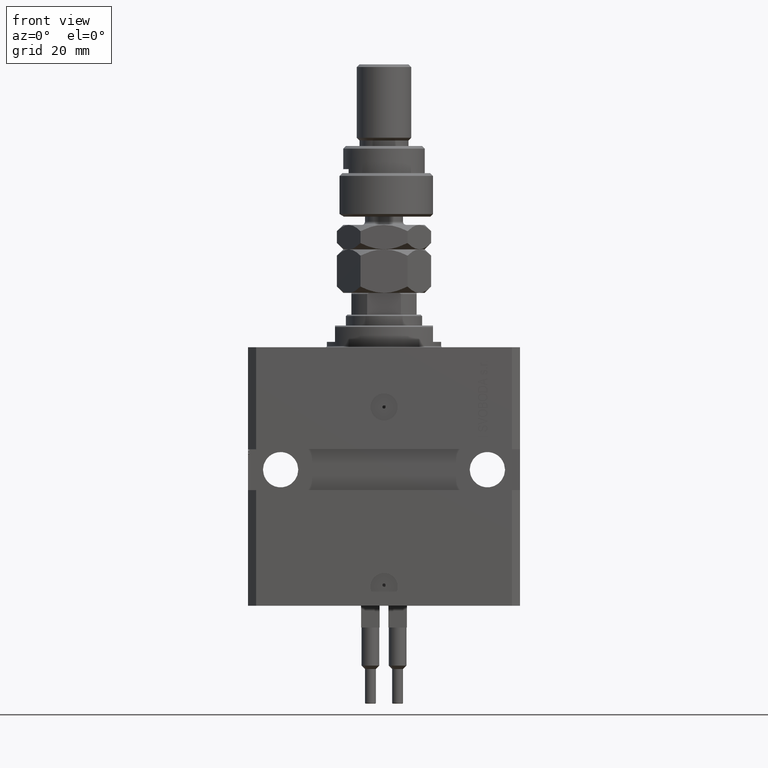
[diagram: clean part render]
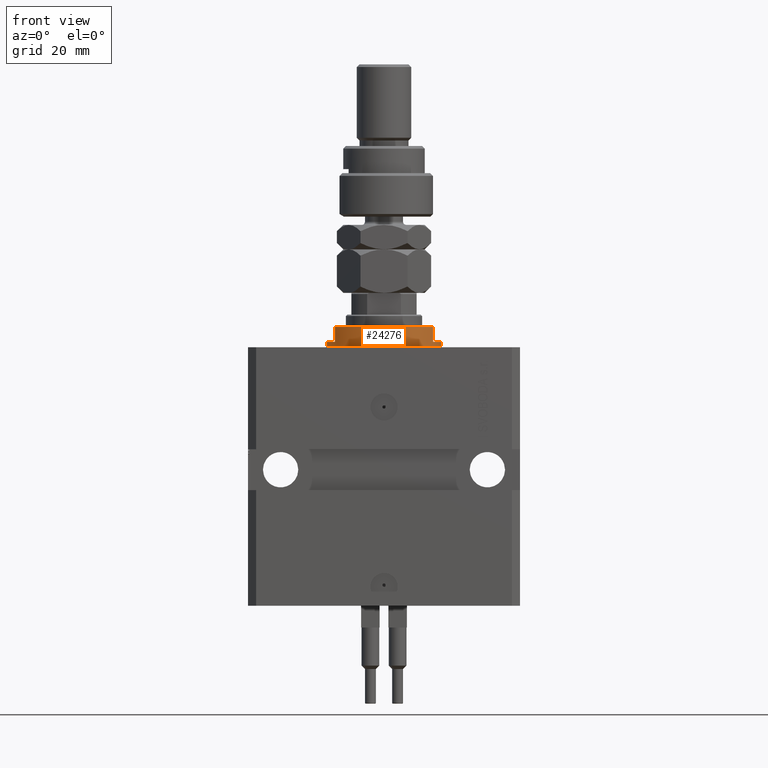
[diagram: same view with one face highlighted and labeled with its STEP entity id]
A machine part, front view. The second image highlights one B-rep face of the part: STEP entity #24276.
In plain terms, the highlighted cylindrical surface (partial cylindrical patch) has radius 21 mm, axis along (0, 0, -1).
Its self-contained STEP definition (entity closure, byte-faithful):
#359 = VERTEX_POINT ( 'NONE', #3332 ) ;
#1786 = VERTEX_POINT ( 'NONE', #24195 ) ;
#1796 = CARTESIAN_POINT ( 'NONE',  ( -18.00000000000000000, -10.81665382639197048, -8.000000000000000000 ) ) ;
#1979 = CARTESIAN_POINT ( 'NONE',  ( 18.00000000000000000, -10.81665382639197048, -7.500000000000016875 ) ) ;
#2524 = ORIENTED_EDGE ( 'NONE', *, *, #31877, .F. ) ;
#2593 = CIRCLE ( 'NONE', #36544, 21.00000000000000000 ) ;
#3332 = CARTESIAN_POINT ( 'NONE',  ( -21.00000000000000000, 2.571758278209441661E-15, -0.5000000000000004441 ) ) ;
#4902 = CYLINDRICAL_SURFACE ( 'NONE', #47258, 21.00000000000000000 ) ;
#5371 = CIRCLE ( 'NONE', #38448, 21.00000000000000000 ) ;
#5528 = VERTEX_POINT ( 'NONE', #49860 ) ;
#7348 = ORIENTED_EDGE ( 'NONE', *, *, #28617, .T. ) ;
#9098 = DIRECTION ( 'NONE',  ( -0.000000000000000000, -0.000000000000000000, 1.000000000000000000 ) ) ;
#9364 = CIRCLE ( 'NONE', #11041, 21.00000000000000000 ) ;
#10077 = EDGE_CURVE ( 'NONE', #48825, #38222, #26940, .T. ) ;
#10701 = ORIENTED_EDGE ( 'NONE', *, *, #30349, .F. ) ;
#11041 = AXIS2_PLACEMENT_3D ( 'NONE', #41863, #23188, #38726 ) ;
#15553 = EDGE_CURVE ( 'NONE', #43414, #16613, #48528, .T. ) ;
#15918 = CIRCLE ( 'NONE', #29977, 21.00000000000000000 ) ;
#16613 = VERTEX_POINT ( 'NONE', #42082 ) ;
#17221 = CARTESIAN_POINT ( 'NONE',  ( 0.000000000000000000, 0.000000000000000000, -7.500000000000016875 ) ) ;
#17340 = VECTOR ( 'NONE', #42764, 1000.000000000000000 ) ;
#18109 = LINE ( 'NONE', #1796, #40679 ) ;
#19463 = CARTESIAN_POINT ( 'NONE',  ( 0.000000000000000000, 0.000000000000000000, -2.000000000000000000 ) ) ;
#20812 = DIRECTION ( 'NONE',  ( 0.000000000000000000, 0.000000000000000000, -1.000000000000000000 ) ) ;
#22142 = VECTOR ( 'NONE', #9098, 1000.000000000000000 ) ;
#23188 = DIRECTION ( 'NONE',  ( -0.000000000000000000, -0.000000000000000000, -1.000000000000000000 ) ) ;
#24011 = ORIENTED_EDGE ( 'NONE', *, *, #10077, .F. ) ;
#24195 = CARTESIAN_POINT ( 'NONE',  ( -18.00000000000000000, -10.81665382639197048, -7.500000000000017764 ) ) ;
#24276 = ADVANCED_FACE ( 'NONE', ( #24595 ), #4902, .T. ) ;
#24505 = LINE ( 'NONE', #40320, #25873 ) ;
#24595 = FACE_OUTER_BOUND ( 'NONE', #35975, .T. ) ;
#25873 = VECTOR ( 'NONE', #35917, 1000.000000000000000 ) ;
#26195 = EDGE_CURVE ( 'NONE', #5528, #1786, #18109, .T. ) ;
#26940 = LINE ( 'NONE', #31083, #17340 ) ;
#28617 = EDGE_CURVE ( 'NONE', #1786, #38222, #15918, .T. ) ;
#28891 = DIRECTION ( 'NONE',  ( 0.000000000000000000, 0.000000000000000000, 1.000000000000000000 ) ) ;
#29977 = AXIS2_PLACEMENT_3D ( 'NONE', #17221, #28891, #40828 ) ;
#30349 = EDGE_CURVE ( 'NONE', #5528, #41589, #2593, .T. ) ;
#31083 = CARTESIAN_POINT ( 'NONE',  ( 18.00000000000000000, -10.81665382639197048, -8.000000000000000000 ) ) ;
#31877 = EDGE_CURVE ( 'NONE', #41589, #359, #24505, .T. ) ;
#32395 = CARTESIAN_POINT ( 'NONE',  ( -21.00000000000000000, 2.571758278209441661E-15, -2.000000000000000000 ) ) ;
#35807 = CARTESIAN_POINT ( 'NONE',  ( 21.00000000000000000, 0.000000000000000000, -8.000000000000000000 ) ) ;
#35917 = DIRECTION ( 'NONE',  ( -0.000000000000000000, -0.000000000000000000, 1.000000000000000000 ) ) ;
#35975 = EDGE_LOOP ( 'NONE', ( #2524, #10701, #45255, #7348, #24011, #43501, #45939, #36148 ) ) ;
#36148 = ORIENTED_EDGE ( 'NONE', *, *, #42316, .T. ) ;
#36518 = CARTESIAN_POINT ( 'NONE',  ( 0.000000000000000000, 0.000000000000000000, -8.000000000000000000 ) ) ;
#36544 = AXIS2_PLACEMENT_3D ( 'NONE', #19463, #47983, #48762 ) ;
#36578 = CARTESIAN_POINT ( 'NONE',  ( 18.00000000000000000, -10.81665382639197048, -2.000000000000000000 ) ) ;
#37716 = CARTESIAN_POINT ( 'NONE',  ( 21.00000000000000000, 0.000000000000000000, -2.000000000000000000 ) ) ;
#38222 = VERTEX_POINT ( 'NONE', #1979 ) ;
#38448 = AXIS2_PLACEMENT_3D ( 'NONE', #48844, #20812, #41300 ) ;
#38726 = DIRECTION ( 'NONE',  ( 1.000000000000000000, 0.000000000000000000, 0.000000000000000000 ) ) ;
#40320 = CARTESIAN_POINT ( 'NONE',  ( -21.00000000000000000, 2.571758278209441661E-15, -8.000000000000000000 ) ) ;
#40679 = VECTOR ( 'NONE', #42227, 1000.000000000000000 ) ;
#40828 = DIRECTION ( 'NONE',  ( -1.000000000000000000, 0.000000000000000000, 0.000000000000000000 ) ) ;
#41300 = DIRECTION ( 'NONE',  ( -1.000000000000000000, 0.000000000000000000, 0.000000000000000000 ) ) ;
#41462 = DIRECTION ( 'NONE',  ( 1.000000000000000000, 0.000000000000000000, 0.000000000000000000 ) ) ;
#41589 = VERTEX_POINT ( 'NONE', #32395 ) ;
#41863 = CARTESIAN_POINT ( 'NONE',  ( 0.000000000000000000, 0.000000000000000000, -0.5000000000000004441 ) ) ;
#41953 = DIRECTION ( 'NONE',  ( -0.000000000000000000, -0.000000000000000000, 1.000000000000000000 ) ) ;
#42082 = CARTESIAN_POINT ( 'NONE',  ( 21.00000000000000000, 0.000000000000000000, -0.5000000000000004441 ) ) ;
#42227 = DIRECTION ( 'NONE',  ( 0.000000000000000000, 0.000000000000000000, -1.000000000000000000 ) ) ;
#42316 = EDGE_CURVE ( 'NONE', #16613, #359, #9364, .T. ) ;
#42764 = DIRECTION ( 'NONE',  ( 0.000000000000000000, 0.000000000000000000, -1.000000000000000000 ) ) ;
#43414 = VERTEX_POINT ( 'NONE', #37716 ) ;
#43501 = ORIENTED_EDGE ( 'NONE', *, *, #45479, .F. ) ;
#45255 = ORIENTED_EDGE ( 'NONE', *, *, #26195, .T. ) ;
#45479 = EDGE_CURVE ( 'NONE', #43414, #48825, #5371, .T. ) ;
#45939 = ORIENTED_EDGE ( 'NONE', *, *, #15553, .T. ) ;
#47258 = AXIS2_PLACEMENT_3D ( 'NONE', #36518, #41953, #41462 ) ;
#47983 = DIRECTION ( 'NONE',  ( 0.000000000000000000, 0.000000000000000000, -1.000000000000000000 ) ) ;
#48528 = LINE ( 'NONE', #35807, #22142 ) ;
#48762 = DIRECTION ( 'NONE',  ( -1.000000000000000000, 0.000000000000000000, 0.000000000000000000 ) ) ;
#48825 = VERTEX_POINT ( 'NONE', #36578 ) ;
#48844 = CARTESIAN_POINT ( 'NONE',  ( 0.000000000000000000, 0.000000000000000000, -2.000000000000000000 ) ) ;
#49860 = CARTESIAN_POINT ( 'NONE',  ( -18.00000000000000000, -10.81665382639197048, -2.000000000000000000 ) ) ;